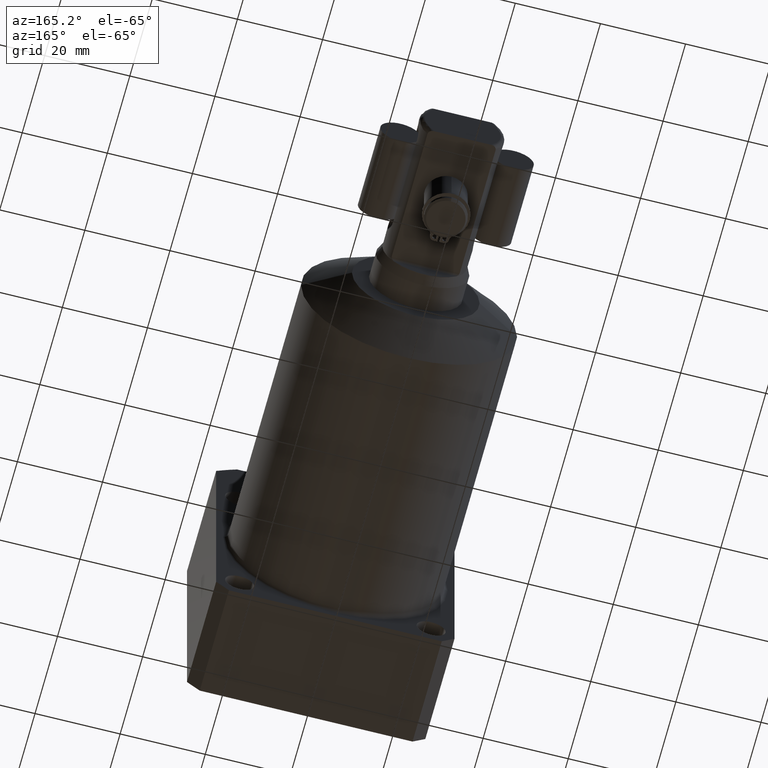
[diagram: clean part render]
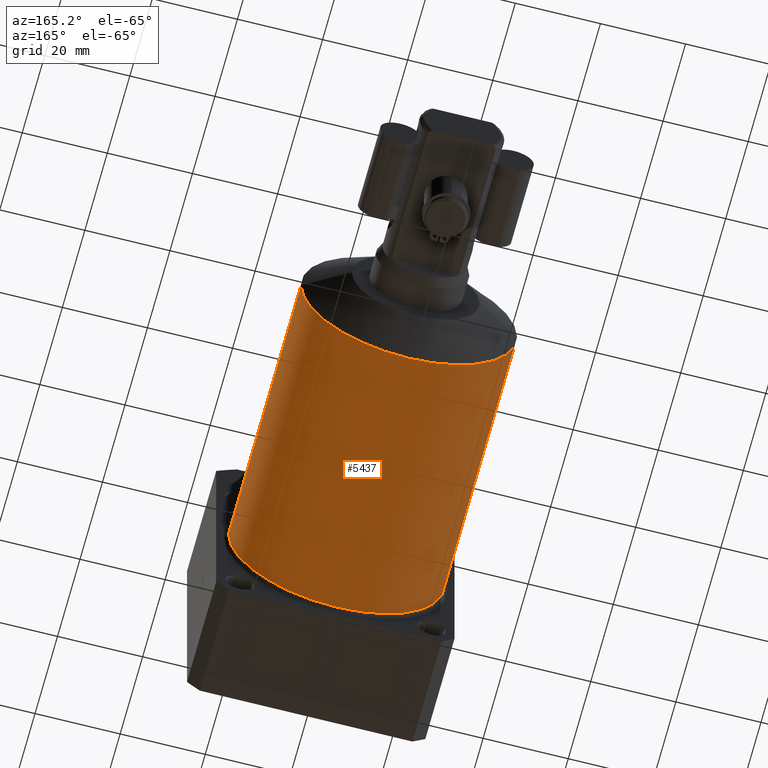
[diagram: same view with one face highlighted and labeled with its STEP entity id]
A machine part, auxiliary view. The second image highlights one B-rep face of the part: STEP entity #5437.
In plain terms, the highlighted cylindrical surface (partial cylindrical patch) has radius 25.385 mm, axis along (0, -1, 0).
Its self-contained STEP definition (entity closure, byte-faithful):
#1517=CARTESIAN_POINT('',(1.203292953544E-14,6.550421745447E1,0.E0));
#1518=DIRECTION('',(0.E0,-1.E0,0.E0));
#1519=DIRECTION('',(-1.E0,0.E0,0.E0));
#1520=AXIS2_PLACEMENT_3D('',#1517,#1518,#1519);
#1525=DIRECTION('',(0.E0,-1.E0,0.E0));
#1526=VECTOR('',#1525,6.450421745447E1);
#1527=CARTESIAN_POINT('',(-2.5385E1,6.550421745447E1,0.E0));
#1528=LINE('',#1527,#1526);
#1532=CARTESIAN_POINT('',(0.E0,1.E0,0.E0));
#1533=DIRECTION('',(0.E0,1.E0,0.E0));
#1534=DIRECTION('',(1.E0,0.E0,0.E0));
#1535=AXIS2_PLACEMENT_3D('',#1532,#1533,#1534);
#1540=DIRECTION('',(0.E0,-1.E0,0.E0));
#1541=VECTOR('',#1540,6.450421745447E1);
#1542=CARTESIAN_POINT('',(2.5385E1,6.550421745447E1,0.E0));
#1543=LINE('',#1542,#1541);
#3747=CARTESIAN_POINT('',(2.5385E1,6.550421745447E1,0.E0));
#3748=VERTEX_POINT('',#3747);
#3749=CARTESIAN_POINT('',(-2.5385E1,6.550421745447E1,0.E0));
#3750=VERTEX_POINT('',#3749);
#3831=CARTESIAN_POINT('',(2.5385E1,1.E0,0.E0));
#3832=CARTESIAN_POINT('',(-2.5385E1,1.E0,0.E0));
#3833=VERTEX_POINT('',#3831);
#3834=VERTEX_POINT('',#3832);
#5425=CARTESIAN_POINT('',(1.379105376690E-14,7.5075E1,0.E0));
#5426=DIRECTION('',(0.E0,-1.E0,0.E0));
#5427=DIRECTION('',(-1.E0,0.E0,0.E0));
#5428=AXIS2_PLACEMENT_3D('',#5425,#5426,#5427);
#5429=CYLINDRICAL_SURFACE('',#5428,2.5385E1);
#5430=ORIENTED_EDGE('',*,*,#5390,.F.);
#5431=ORIENTED_EDGE('',*,*,#5420,.T.);
#5433=ORIENTED_EDGE('',*,*,#5432,.F.);
#5434=ORIENTED_EDGE('',*,*,#5416,.F.);
#5435=EDGE_LOOP('',(#5430,#5431,#5433,#5434));
#5436=FACE_OUTER_BOUND('',#5435,.F.);
#1521=CIRCLE('',#1520,2.5385E1);
#1536=CIRCLE('',#1535,2.5385E1);
#5390=EDGE_CURVE('',#3750,#3748,#1521,.T.);
#5416=EDGE_CURVE('',#3748,#3833,#1543,.T.);
#5420=EDGE_CURVE('',#3750,#3834,#1528,.T.);
#5432=EDGE_CURVE('',#3833,#3834,#1536,.T.);
#5437=ADVANCED_FACE('',(#5436),#5429,.T.);